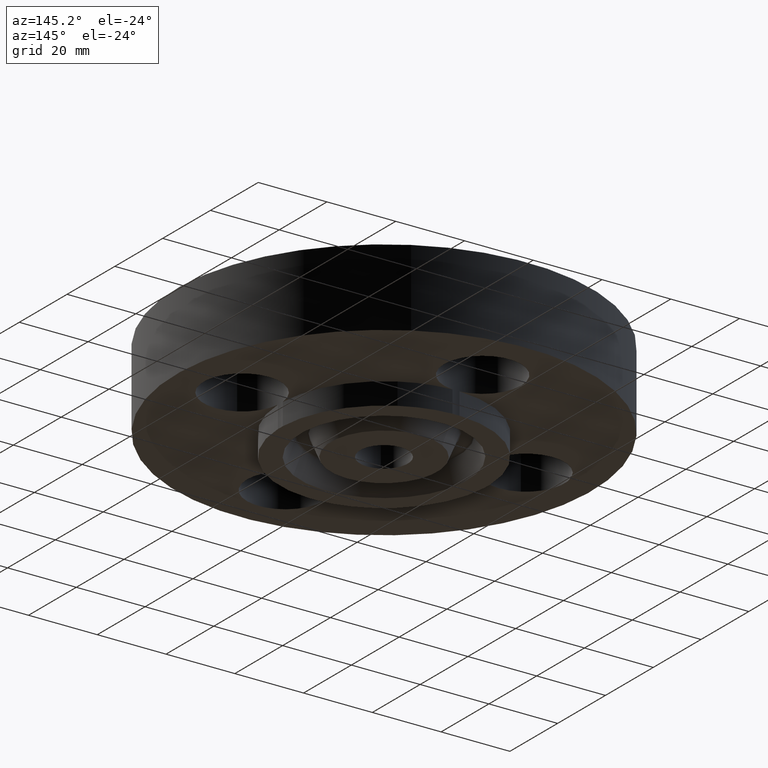
[diagram: clean part render]
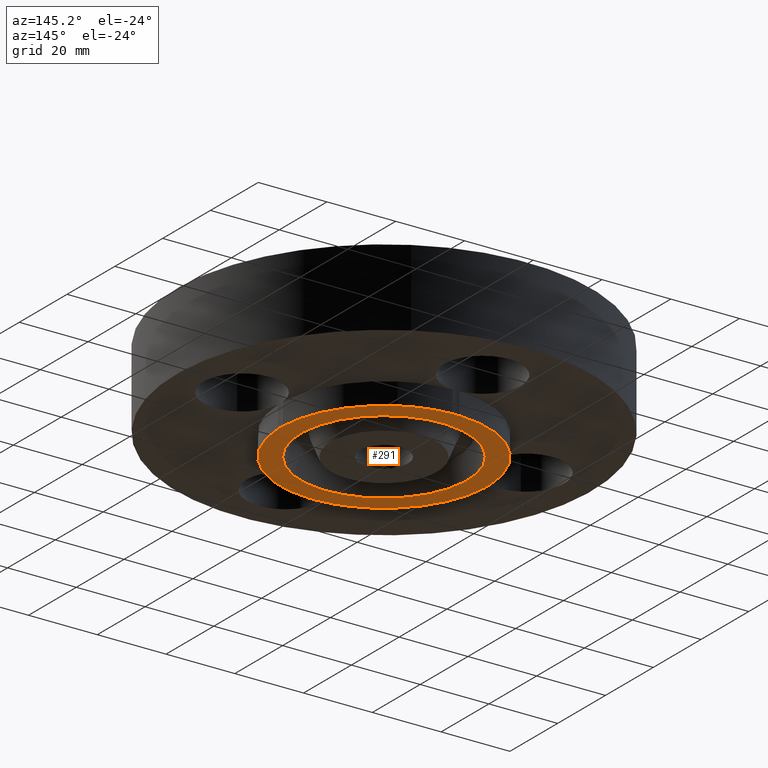
[diagram: same view with one face highlighted and labeled with its STEP entity id]
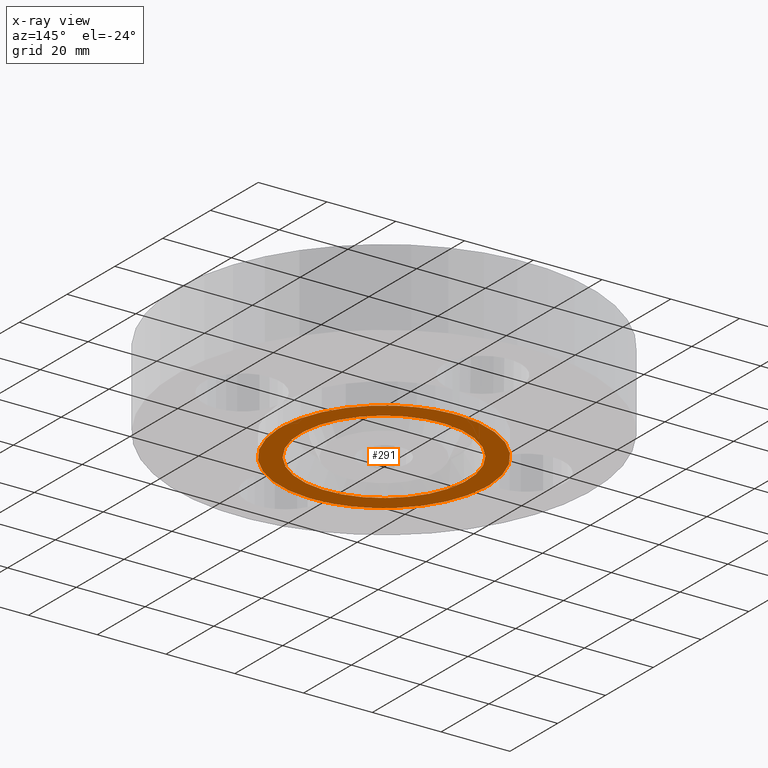
[diagram: x-ray of the same camera — body ghosted, the highlighted face saturated]
A machine part, auxiliary view. The second image highlights one B-rep face of the part: STEP entity #291.
The next image is the same camera in x-ray: the body ghosted, the highlighted face saturated — about 0% of this face is hidden behind the body in this view.
In plain terms, the highlighted planar face has unit normal (0, 0, -1).
Its self-contained STEP definition (entity closure, byte-faithful):
#123=AXIS2_PLACEMENT_3D('Plane Axis2P3D',#120,#121,#122) ;
#193=AXIS2_PLACEMENT_3D('Circle Axis2P3D',#191,#192,$) ;
#202=AXIS2_PLACEMENT_3D('Circle Axis2P3D',#200,#201,$) ;
#209=AXIS2_PLACEMENT_3D('Circle Axis2P3D',#207,#208,$) ;
#216=AXIS2_PLACEMENT_3D('Circle Axis2P3D',#214,#215,$) ;
#223=AXIS2_PLACEMENT_3D('Circle Axis2P3D',#221,#222,$) ;
#230=AXIS2_PLACEMENT_3D('Circle Axis2P3D',#228,#229,$) ;
#237=AXIS2_PLACEMENT_3D('Circle Axis2P3D',#235,#236,$) ;
#244=AXIS2_PLACEMENT_3D('Circle Axis2P3D',#242,#243,$) ;
#251=AXIS2_PLACEMENT_3D('Circle Axis2P3D',#249,#250,$) ;
#258=AXIS2_PLACEMENT_3D('Circle Axis2P3D',#256,#257,$) ;
#275=AXIS2_PLACEMENT_3D('Circle Axis2P3D',#273,#274,$) ;
#284=AXIS2_PLACEMENT_3D('Circle Axis2P3D',#282,#283,$) ;
#120=CARTESIAN_POINT('Axis2P3D Location',(0.,0.273000000001,-0.250000000001)) ;
#191=CARTESIAN_POINT('Axis2P3D Location',(0.,0.,-0.250000000001)) ;
#195=CARTESIAN_POINT('Vertex',(1.186825,-0.0400333532821,-0.250000000001)) ;
#197=CARTESIAN_POINT('Vertex',(0.0400333532821,-1.186825,-0.250000000001)) ;
#200=CARTESIAN_POINT('Axis2P3D Location',(6.99353086378E-017,-1.62500000001,-0.250000000001)) ;
#204=CARTESIAN_POINT('Vertex',(-0.0400333532821,-1.186825,-0.250000000001)) ;
#207=CARTESIAN_POINT('Axis2P3D Location',(0.,0.,-0.250000000001)) ;
#211=CARTESIAN_POINT('Vertex',(-0.569317827095,-1.04212929225,-0.250000000001)) ;
#214=CARTESIAN_POINT('Axis2P3D Location',(0.,0.,-0.250000000001)) ;
#218=CARTESIAN_POINT('Vertex',(-1.186825,-0.0400333532821,-0.250000000001)) ;
#221=CARTESIAN_POINT('Axis2P3D Location',(-1.62500000001,-2.79741234551E-016,-0.250000000001)) ;
#225=CARTESIAN_POINT('Vertex',(-1.186825,0.0400333532821,-0.250000000001)) ;
#228=CARTESIAN_POINT('Axis2P3D Location',(0.,0.,-0.250000000001)) ;
#232=CARTESIAN_POINT('Vertex',(-0.0400333532821,1.186825,-0.250000000001)) ;
#235=CARTESIAN_POINT('Axis2P3D Location',(0.,1.62500000001,-0.250000000001)) ;
#239=CARTESIAN_POINT('Vertex',(0.0400333532821,1.186825,-0.250000000001)) ;
#242=CARTESIAN_POINT('Axis2P3D Location',(0.,0.,-0.250000000001)) ;
#246=CARTESIAN_POINT('Vertex',(0.569317827095,1.04212929225,-0.250000000001)) ;
#249=CARTESIAN_POINT('Axis2P3D Location',(0.,0.,-0.250000000001)) ;
#253=CARTESIAN_POINT('Vertex',(1.186825,0.0400333532821,-0.250000000001)) ;
#256=CARTESIAN_POINT('Axis2P3D Location',(1.62500000001,-3.1470888887E-016,-0.250000000001)) ;
#273=CARTESIAN_POINT('Axis2P3D Location',(3.49676543189E-017,-2.09805925913E-016,-0.250000000001)) ;
#277=CARTESIAN_POINT('Vertex',(0.457132251061,-0.836774972766,-0.250000000001)) ;
#279=CARTESIAN_POINT('Vertex',(-0.457132251061,0.836774972766,-0.250000000001)) ;
#282=CARTESIAN_POINT('Axis2P3D Location',(1.04902962957E-016,-6.99353086378E-017,-0.250000000001)) ;
#121=DIRECTION('Axis2P3D Direction',(0.,0.,-0.0393700787402)) ;
#122=DIRECTION('Axis2P3D XDirection',(0.0393700787402,0.,0.)) ;
#192=DIRECTION('Axis2P3D Direction',(0.,0.,-0.0393700787402)) ;
#201=DIRECTION('Axis2P3D Direction',(0.,0.,-0.0393700787402)) ;
#208=DIRECTION('Axis2P3D Direction',(0.,0.,-0.0393700787402)) ;
#215=DIRECTION('Axis2P3D Direction',(0.,0.,-0.0393700787402)) ;
#222=DIRECTION('Axis2P3D Direction',(0.,0.,-0.0393700787402)) ;
#229=DIRECTION('Axis2P3D Direction',(0.,0.,-0.0393700787402)) ;
#236=DIRECTION('Axis2P3D Direction',(0.,0.,-0.0393700787402)) ;
#243=DIRECTION('Axis2P3D Direction',(0.,0.,-0.0393700787402)) ;
#250=DIRECTION('Axis2P3D Direction',(0.,0.,-0.0393700787402)) ;
#257=DIRECTION('Axis2P3D Direction',(0.,0.,-0.0393700787402)) ;
#274=DIRECTION('Axis2P3D Direction',(0.,0.,-0.0393700787402)) ;
#283=DIRECTION('Axis2P3D Direction',(0.,0.,-0.0393700787402)) ;
#262=ORIENTED_EDGE('',*,*,#199,.T.) ;
#263=ORIENTED_EDGE('',*,*,#206,.F.) ;
#264=ORIENTED_EDGE('',*,*,#213,.T.) ;
#265=ORIENTED_EDGE('',*,*,#220,.T.) ;
#266=ORIENTED_EDGE('',*,*,#227,.F.) ;
#267=ORIENTED_EDGE('',*,*,#234,.T.) ;
#268=ORIENTED_EDGE('',*,*,#241,.F.) ;
#269=ORIENTED_EDGE('',*,*,#248,.T.) ;
#270=ORIENTED_EDGE('',*,*,#255,.T.) ;
#271=ORIENTED_EDGE('',*,*,#260,.F.) ;
#288=ORIENTED_EDGE('',*,*,#281,.F.) ;
#289=ORIENTED_EDGE('',*,*,#286,.F.) ;
#290=FACE_BOUND('',#287,.T.) ;
#291=ADVANCED_FACE('PartBody',(#272,#290),#124,.T.) ;
#194=CIRCLE('generated circle',#193,1.1875) ;
#203=CIRCLE('generated circle',#202,0.440000000002) ;
#210=CIRCLE('generated circle',#209,1.1875) ;
#217=CIRCLE('generated circle',#216,1.1875) ;
#224=CIRCLE('generated circle',#223,0.440000000002) ;
#231=CIRCLE('generated circle',#230,1.1875) ;
#238=CIRCLE('generated circle',#237,0.440000000002) ;
#245=CIRCLE('generated circle',#244,1.1875) ;
#252=CIRCLE('generated circle',#251,1.1875) ;
#259=CIRCLE('generated circle',#258,0.440000000002) ;
#276=CIRCLE('generated circle',#275,0.953500000004) ;
#285=CIRCLE('generated circle',#284,0.953500000004) ;
#199=EDGE_CURVE('',#196,#198,#194,.T.) ;
#206=EDGE_CURVE('',#205,#198,#203,.T.) ;
#213=EDGE_CURVE('',#205,#212,#210,.T.) ;
#220=EDGE_CURVE('',#212,#219,#217,.T.) ;
#227=EDGE_CURVE('',#226,#219,#224,.T.) ;
#234=EDGE_CURVE('',#226,#233,#231,.T.) ;
#241=EDGE_CURVE('',#240,#233,#238,.T.) ;
#248=EDGE_CURVE('',#240,#247,#245,.T.) ;
#255=EDGE_CURVE('',#247,#254,#252,.T.) ;
#260=EDGE_CURVE('',#196,#254,#259,.T.) ;
#281=EDGE_CURVE('',#278,#280,#276,.T.) ;
#286=EDGE_CURVE('',#280,#278,#285,.T.) ;
#261=EDGE_LOOP('',(#262,#263,#264,#265,#266,#267,#268,#269,#270,#271)) ;
#287=EDGE_LOOP('',(#288,#289)) ;
#272=FACE_OUTER_BOUND('',#261,.T.) ;
#124=PLANE('',#123) ;
#196=VERTEX_POINT('',#195) ;
#198=VERTEX_POINT('',#197) ;
#205=VERTEX_POINT('',#204) ;
#212=VERTEX_POINT('',#211) ;
#219=VERTEX_POINT('',#218) ;
#226=VERTEX_POINT('',#225) ;
#233=VERTEX_POINT('',#232) ;
#240=VERTEX_POINT('',#239) ;
#247=VERTEX_POINT('',#246) ;
#254=VERTEX_POINT('',#253) ;
#278=VERTEX_POINT('',#277) ;
#280=VERTEX_POINT('',#279) ;